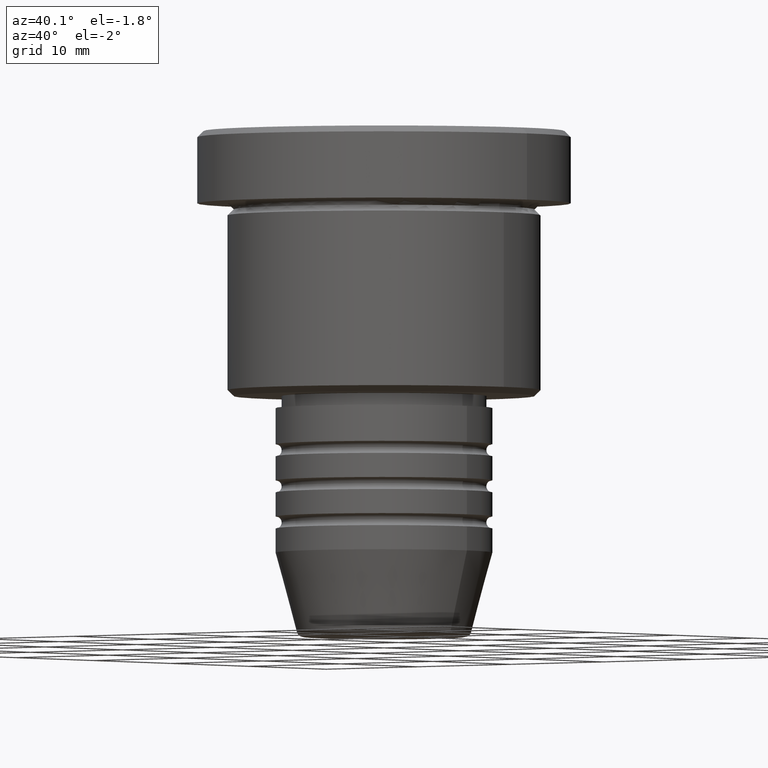
[diagram: clean part render]
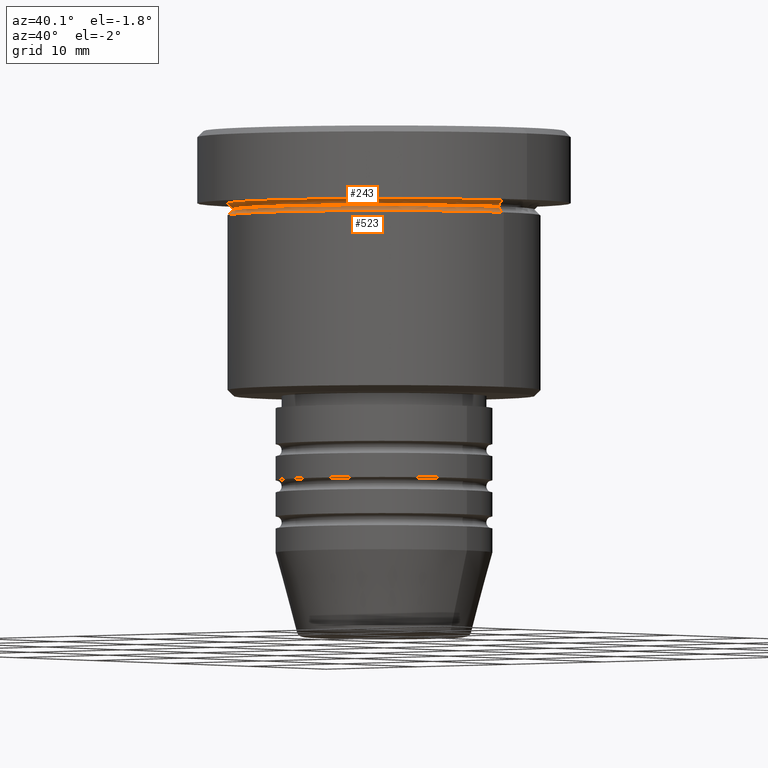
[diagram: same view with one multi-face feature highlighted, each face labeled with its STEP entity id]
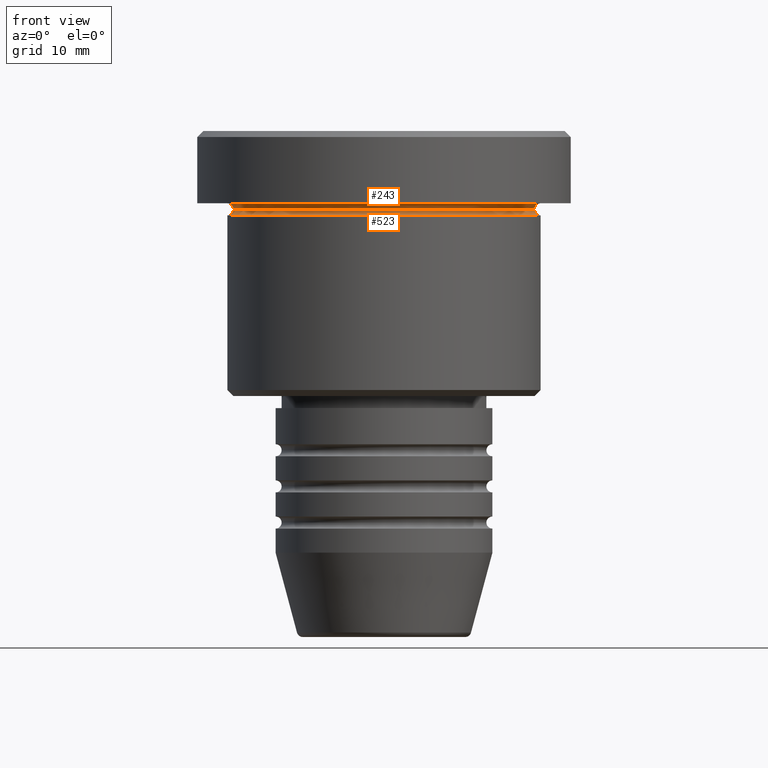
[diagram: same view with one multi-face feature highlighted, each face labeled with its STEP entity id]
A machine part, auxiliary view. The highlighted faces form ONE feature: a constant-radius fillet chain: 2 tangent blend faces with common blend radius 0.5 mm. The faces share edges in the B-rep.
A second angle (front view) of the same feature is appended — it is thin or edge-on in the first view.
Their STEP definitions:
[1] entity #243 (Torus):
#4 = AXIS2_PLACEMENT_3D ( 'NONE', #635, #917, #726 ) ;
#25 = VERTEX_POINT ( 'NONE', #940 ) ;
#71 = DIRECTION ( 'NONE',  ( -1.224646799147353207E-16, 1.000000000000000000, 0.000000000000000000 ) ) ;
#83 = EDGE_CURVE ( 'NONE', #25, #270, #95, .T. ) ;
#95 = CIRCLE ( 'NONE', #896, 0.5000000000000004441 ) ;
#183 = CIRCLE ( 'NONE', #1152, 13.00000000000000000 ) ;
#186 = AXIS2_PLACEMENT_3D ( 'NONE', #437, #902, #721 ) ;
#217 = DIRECTION ( 'NONE',  ( -0.000000000000000000, -1.000000000000000000, -0.000000000000000000 ) ) ;
#243 = ADVANCED_FACE ( 'NONE', ( #732 ), #357, .F. ) ;
#270 = VERTEX_POINT ( 'NONE', #531 ) ;
#280 = DIRECTION ( 'NONE',  ( -0.000000000000000000, -0.000000000000000000, 1.000000000000000000 ) ) ;
#327 = ORIENTED_EDGE ( 'NONE', *, *, #83, .T. ) ;
#357 = TOROIDAL_SURFACE ( 'NONE', #4, 13.00000000000000000, 0.5000000000000000000 ) ;
#372 = ORIENTED_EDGE ( 'NONE', *, *, #826, .F. ) ;
#381 = DIRECTION ( 'NONE',  ( -1.000000000000000000, 0.000000000000000000, 0.000000000000000000 ) ) ;
#413 = DIRECTION ( 'NONE',  ( 0.000000000000000000, 0.000000000000000000, -1.000000000000000000 ) ) ;
#425 = DIRECTION ( 'NONE',  ( -1.000000000000000000, -1.224646799147353454E-16, 0.000000000000000000 ) ) ;
#437 = CARTESIAN_POINT ( 'NONE',  ( 0.000000000000000000, 0.000000000000000000, -6.499999999999995559 ) ) ;
#531 = CARTESIAN_POINT ( 'NONE',  ( 13.00000000000000000, 1.592040838891559095E-15, -5.999999999999994671 ) ) ;
#604 = CIRCLE ( 'NONE', #822, 0.5000000000000004441 ) ;
#635 = CARTESIAN_POINT ( 'NONE',  ( 0.000000000000000000, 0.000000000000000000, -6.499999999999995559 ) ) ;
#638 = ORIENTED_EDGE ( 'NONE', *, *, #939, .F. ) ;
#664 = CARTESIAN_POINT ( 'NONE',  ( -13.00000000000000000, 0.000000000000000000, -6.499999999999995559 ) ) ;
#677 = CARTESIAN_POINT ( 'NONE',  ( -12.49999999999999822, 1.561424668912875308E-15, -6.499999999999995559 ) ) ;
#712 = CARTESIAN_POINT ( 'NONE',  ( -13.00000000000000000, 0.000000000000000000, -5.999999999999994671 ) ) ;
#721 = DIRECTION ( 'NONE',  ( 1.000000000000000000, 0.000000000000000000, 0.000000000000000000 ) ) ;
#726 = DIRECTION ( 'NONE',  ( -1.000000000000000000, 0.000000000000000000, 0.000000000000000000 ) ) ;
#732 = FACE_OUTER_BOUND ( 'NONE', #828, .T. ) ;
#741 = ORIENTED_EDGE ( 'NONE', *, *, #1128, .T. ) ;
#822 = AXIS2_PLACEMENT_3D ( 'NONE', #664, #217, #413 ) ;
#826 = EDGE_CURVE ( 'NONE', #1101, #270, #183, .T. ) ;
#828 = EDGE_LOOP ( 'NONE', ( #741, #327, #372, #638 ) ) ;
#868 = CARTESIAN_POINT ( 'NONE',  ( 13.00000000000000000, 1.592040838891559095E-15, -6.499999999999995559 ) ) ;
#896 = AXIS2_PLACEMENT_3D ( 'NONE', #868, #71, #425 ) ;
#902 = DIRECTION ( 'NONE',  ( -0.000000000000000000, -0.000000000000000000, 1.000000000000000000 ) ) ;
#917 = DIRECTION ( 'NONE',  ( 0.000000000000000000, 0.000000000000000000, -1.000000000000000000 ) ) ;
#923 = CARTESIAN_POINT ( 'NONE',  ( 0.000000000000000000, 0.000000000000000000, -5.999999999999995559 ) ) ;
#939 = EDGE_CURVE ( 'NONE', #999, #1101, #604, .T. ) ;
#940 = CARTESIAN_POINT ( 'NONE',  ( 12.49999999999999822, 0.000000000000000000, -6.499999999999995559 ) ) ;
#999 = VERTEX_POINT ( 'NONE', #677 ) ;
#1048 = CIRCLE ( 'NONE', #186, 12.49999999999999822 ) ;
#1101 = VERTEX_POINT ( 'NONE', #712 ) ;
#1128 = EDGE_CURVE ( 'NONE', #999, #25, #1048, .T. ) ;
#1152 = AXIS2_PLACEMENT_3D ( 'NONE', #923, #280, #381 ) ;
[2] entity #523 (Torus):
#25 = VERTEX_POINT ( 'NONE', #940 ) ;
#29 = DIRECTION ( 'NONE',  ( -0.000000000000000000, -0.000000000000000000, 1.000000000000000000 ) ) ;
#43 = AXIS2_PLACEMENT_3D ( 'NONE', #773, #495, #1146 ) ;
#60 = AXIS2_PLACEMENT_3D ( 'NONE', #665, #754, #215 ) ;
#94 = CIRCLE ( 'NONE', #571, 13.00000000000000000 ) ;
#103 = CARTESIAN_POINT ( 'NONE',  ( 0.000000000000000000, 0.000000000000000000, -6.999999999999995559 ) ) ;
#138 = CARTESIAN_POINT ( 'NONE',  ( -13.00000000000000000, 1.592040838891559095E-15, -6.999999999999995559 ) ) ;
#144 = CARTESIAN_POINT ( 'NONE',  ( 13.00000000000000000, 0.000000000000000000, -6.499999999999995559 ) ) ;
#153 = AXIS2_PLACEMENT_3D ( 'NONE', #144, #866, #887 ) ;
#171 = CIRCLE ( 'NONE', #153, 0.5000000000000004441 ) ;
#186 = AXIS2_PLACEMENT_3D ( 'NONE', #437, #902, #721 ) ;
#215 = DIRECTION ( 'NONE',  ( -1.000000000000000000, 1.224646799147353454E-16, 0.000000000000000000 ) ) ;
#282 = ORIENTED_EDGE ( 'NONE', *, *, #539, .F. ) ;
#384 = EDGE_CURVE ( 'NONE', #999, #1003, #435, .T. ) ;
#435 = CIRCLE ( 'NONE', #60, 0.5000000000000004441 ) ;
#437 = CARTESIAN_POINT ( 'NONE',  ( 0.000000000000000000, 0.000000000000000000, -6.499999999999995559 ) ) ;
#495 = DIRECTION ( 'NONE',  ( -0.000000000000000000, -0.000000000000000000, 1.000000000000000000 ) ) ;
#523 = ADVANCED_FACE ( 'NONE', ( #695 ), #671, .F. ) ;
#539 = EDGE_CURVE ( 'NONE', #25, #624, #171, .T. ) ;
#571 = AXIS2_PLACEMENT_3D ( 'NONE', #103, #29, #847 ) ;
#624 = VERTEX_POINT ( 'NONE', #1140 ) ;
#665 = CARTESIAN_POINT ( 'NONE',  ( -13.00000000000000000, 1.592040838891559095E-15, -6.499999999999995559 ) ) ;
#671 = TOROIDAL_SURFACE ( 'NONE', #43, 13.00000000000000000, 0.5000000000000000000 ) ;
#677 = CARTESIAN_POINT ( 'NONE',  ( -12.49999999999999822, 1.561424668912875308E-15, -6.499999999999995559 ) ) ;
#683 = EDGE_LOOP ( 'NONE', ( #981, #1151, #716, #282 ) ) ;
#695 = FACE_OUTER_BOUND ( 'NONE', #683, .T. ) ;
#716 = ORIENTED_EDGE ( 'NONE', *, *, #876, .T. ) ;
#721 = DIRECTION ( 'NONE',  ( 1.000000000000000000, 0.000000000000000000, 0.000000000000000000 ) ) ;
#754 = DIRECTION ( 'NONE',  ( 1.224646799147353207E-16, 1.000000000000000000, 0.000000000000000000 ) ) ;
#773 = CARTESIAN_POINT ( 'NONE',  ( 0.000000000000000000, 0.000000000000000000, -6.499999999999995559 ) ) ;
#847 = DIRECTION ( 'NONE',  ( 1.000000000000000000, 0.000000000000000000, 0.000000000000000000 ) ) ;
#866 = DIRECTION ( 'NONE',  ( 0.000000000000000000, -1.000000000000000000, 0.000000000000000000 ) ) ;
#876 = EDGE_CURVE ( 'NONE', #1003, #624, #94, .T. ) ;
#887 = DIRECTION ( 'NONE',  ( 0.000000000000000000, 0.000000000000000000, -1.000000000000000000 ) ) ;
#902 = DIRECTION ( 'NONE',  ( -0.000000000000000000, -0.000000000000000000, 1.000000000000000000 ) ) ;
#940 = CARTESIAN_POINT ( 'NONE',  ( 12.49999999999999822, 0.000000000000000000, -6.499999999999995559 ) ) ;
#981 = ORIENTED_EDGE ( 'NONE', *, *, #1128, .F. ) ;
#999 = VERTEX_POINT ( 'NONE', #677 ) ;
#1003 = VERTEX_POINT ( 'NONE', #138 ) ;
#1048 = CIRCLE ( 'NONE', #186, 12.49999999999999822 ) ;
#1128 = EDGE_CURVE ( 'NONE', #999, #25, #1048, .T. ) ;
#1140 = CARTESIAN_POINT ( 'NONE',  ( 13.00000000000000000, 0.000000000000000000, -6.999999999999995559 ) ) ;
#1146 = DIRECTION ( 'NONE',  ( 1.000000000000000000, 0.000000000000000000, 0.000000000000000000 ) ) ;
#1151 = ORIENTED_EDGE ( 'NONE', *, *, #384, .T. ) ;